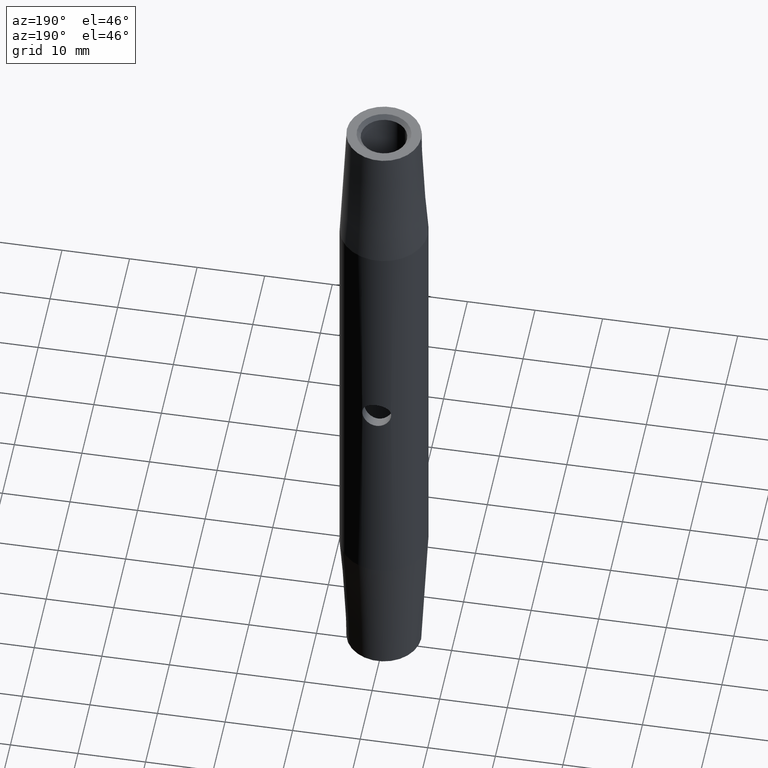
[diagram: clean part render]
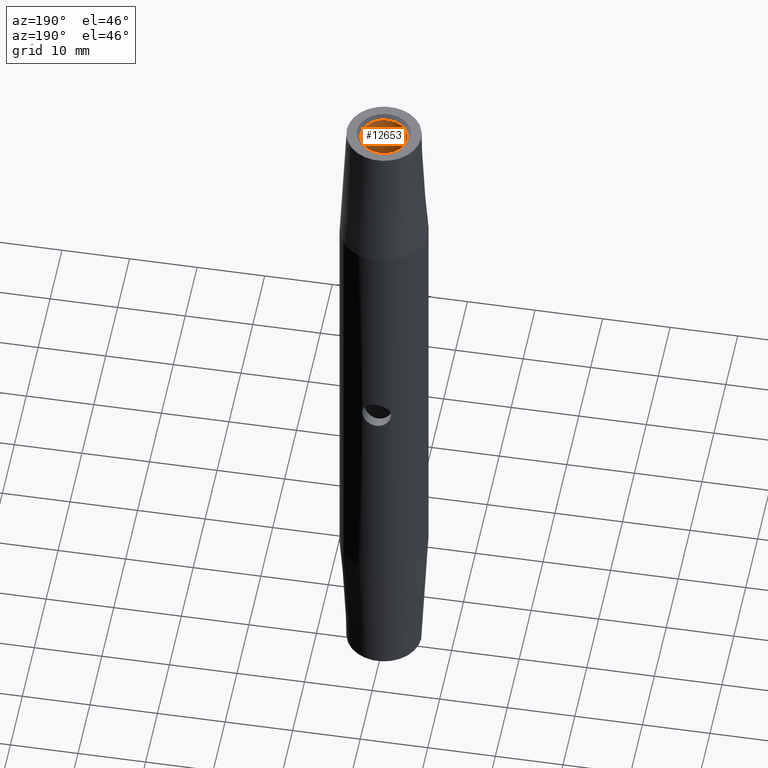
[diagram: same view with one face highlighted and labeled with its STEP entity id]
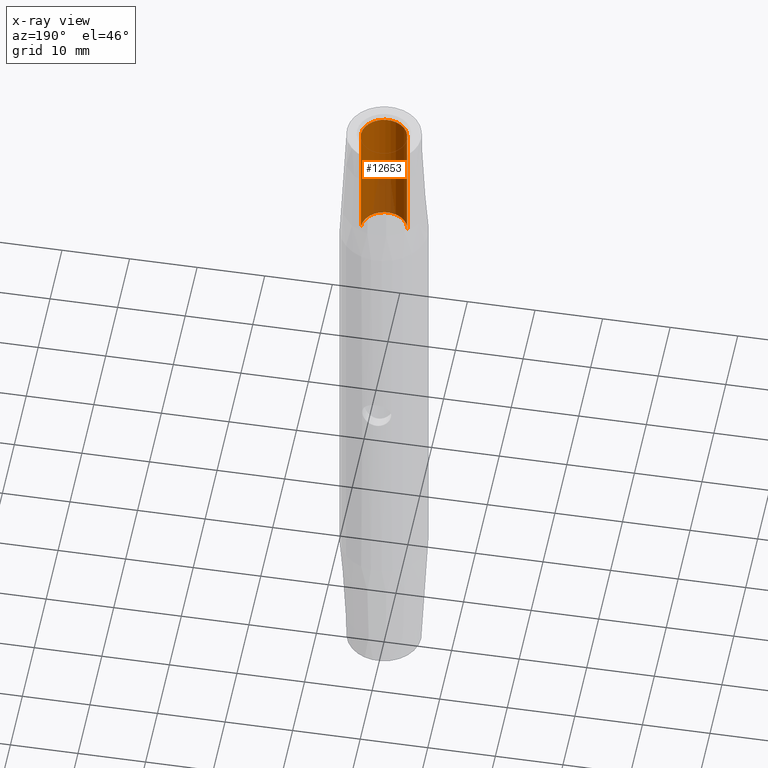
[diagram: x-ray of the same camera — body ghosted, the highlighted face saturated]
A machine part, auxiliary view. The second image highlights one B-rep face of the part: STEP entity #12653.
The next image is the same camera in x-ray: the body ghosted, the highlighted face saturated — about 17% of this face is hidden behind the body in this view.
In plain terms, the highlighted cylindrical surface (edge-blend (fillet) strip) has radius 3.4 mm, axis along (-0, -0, 1).
Its self-contained STEP definition (entity closure, byte-faithful):
#297 = EDGE_CURVE ( 'NONE', #1423, #8340, #4199, .T. ) ;
#408 = CIRCLE ( 'NONE', #3104, 3.399999999999995000 ) ;
#419 = AXIS2_PLACEMENT_3D ( 'NONE', #8535, #9577, #8453 ) ;
#1092 = EDGE_CURVE ( 'NONE', #12452, #12641, #408, .T. ) ;
#1305 = DIRECTION ( 'NONE',  ( -0.0000000000000000000, -0.0000000000000000000, 1.000000000000000000 ) ) ;
#1423 = VERTEX_POINT ( 'NONE', #10942 ) ;
#2471 = CARTESIAN_POINT ( 'NONE',  ( 0.0000000000000000000, 0.0000000000000000000, 51.89999999999998400 ) ) ;
#2597 = VECTOR ( 'NONE', #11835, 1000.000000000000000 ) ;
#2949 = EDGE_CURVE ( 'NONE', #12641, #8340, #12066, .T. ) ;
#3104 = AXIS2_PLACEMENT_3D ( 'NONE', #3340, #1305, #11336 ) ;
#3340 = CARTESIAN_POINT ( 'NONE',  ( 0.0000000000000000000, 0.0000000000000000000, 32.50000000000000000 ) ) ;
#3613 = FACE_OUTER_BOUND ( 'NONE', #11128, .T. ) ;
#4129 = CARTESIAN_POINT ( 'NONE',  ( -3.399999999999995000, 4.163799117100995100E-016, 32.50000000000000000 ) ) ;
#4199 = CIRCLE ( 'NONE', #10908, 3.399999999999996400 ) ;
#4521 = DIRECTION ( 'NONE',  ( 0.0000000000000000000, 0.0000000000000000000, 1.000000000000000000 ) ) ;
#4689 = DIRECTION ( 'NONE',  ( -0.0000000000000000000, -0.0000000000000000000, 1.000000000000000000 ) ) ;
#4734 = CARTESIAN_POINT ( 'NONE',  ( -3.399999999999996400, 4.163799117100996600E-016, 52.50000000000000700 ) ) ;
#5410 = ORIENTED_EDGE ( 'NONE', *, *, #2949, .F. ) ;
#6094 = EDGE_CURVE ( 'NONE', #12452, #1423, #8978, .T. ) ;
#6480 = DIRECTION ( 'NONE',  ( 1.000000000000000000, 0.0000000000000000000, 0.0000000000000000000 ) ) ;
#6702 = CARTESIAN_POINT ( 'NONE',  ( 3.399999999999996400, 0.0000000000000000000, 52.50000000000000700 ) ) ;
#8340 = VERTEX_POINT ( 'NONE', #12053 ) ;
#8453 = DIRECTION ( 'NONE',  ( 1.000000000000000000, 0.0000000000000000000, 0.0000000000000000000 ) ) ;
#8495 = CARTESIAN_POINT ( 'NONE',  ( 3.399999999999995000, 0.0000000000000000000, 32.50000000000000000 ) ) ;
#8535 = CARTESIAN_POINT ( 'NONE',  ( 0.0000000000000000000, 0.0000000000000000000, 52.50000000000000700 ) ) ;
#8978 = LINE ( 'NONE', #4734, #10421 ) ;
#9577 = DIRECTION ( 'NONE',  ( -0.0000000000000000000, -0.0000000000000000000, 1.000000000000000000 ) ) ;
#10124 = CYLINDRICAL_SURFACE ( 'NONE', #419, 3.399999999999996400 ) ;
#10421 = VECTOR ( 'NONE', #4689, 1000.000000000000000 ) ;
#10908 = AXIS2_PLACEMENT_3D ( 'NONE', #2471, #4521, #6480 ) ;
#10942 = CARTESIAN_POINT ( 'NONE',  ( -3.399999999999996400, 4.531193156845215100E-016, 51.89999999999998400 ) ) ;
#11035 = ORIENTED_EDGE ( 'NONE', *, *, #6094, .T. ) ;
#11128 = EDGE_LOOP ( 'NONE', ( #12928, #11035, #12544, #5410 ) ) ;
#11336 = DIRECTION ( 'NONE',  ( 1.000000000000000000, 0.0000000000000000000, 0.0000000000000000000 ) ) ;
#11835 = DIRECTION ( 'NONE',  ( -0.0000000000000000000, -0.0000000000000000000, 1.000000000000000000 ) ) ;
#12053 = CARTESIAN_POINT ( 'NONE',  ( 3.399999999999996400, 0.0000000000000000000, 51.89999999999998400 ) ) ;
#12066 = LINE ( 'NONE', #6702, #2597 ) ;
#12452 = VERTEX_POINT ( 'NONE', #4129 ) ;
#12544 = ORIENTED_EDGE ( 'NONE', *, *, #297, .T. ) ;
#12641 = VERTEX_POINT ( 'NONE', #8495 ) ;
#12653 = ADVANCED_FACE ( 'NONE', ( #3613 ), #10124, .F. ) ;
#12928 = ORIENTED_EDGE ( 'NONE', *, *, #1092, .F. ) ;